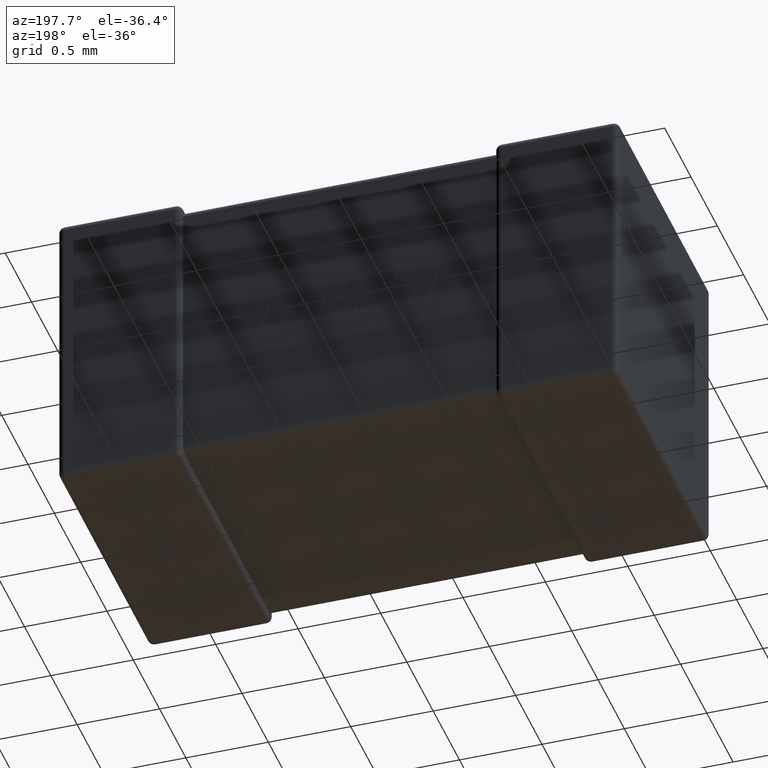
[diagram: clean part render]
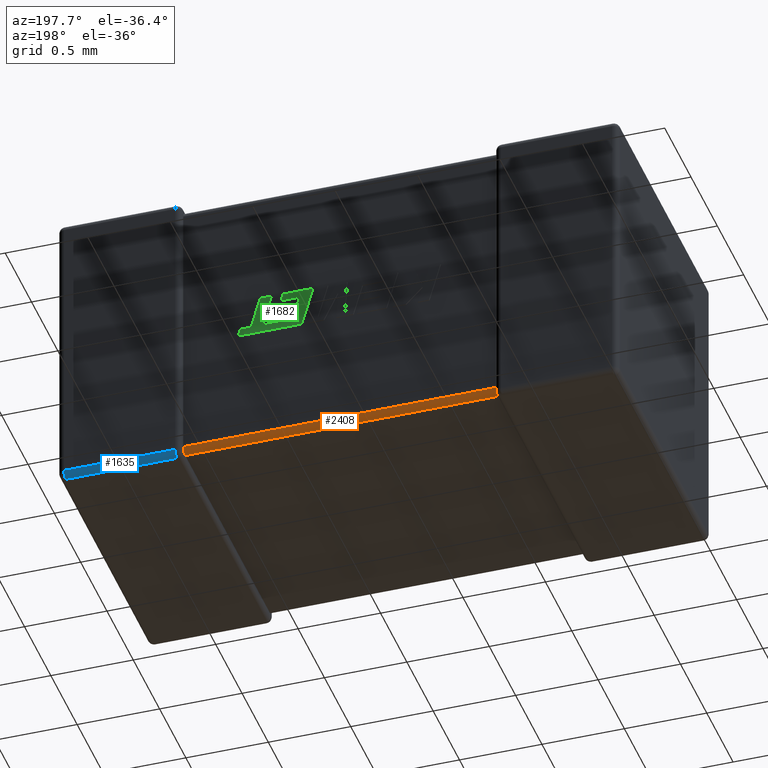
[diagram: same view with three faces highlighted in distinct colors, each labeled with its STEP entity id]
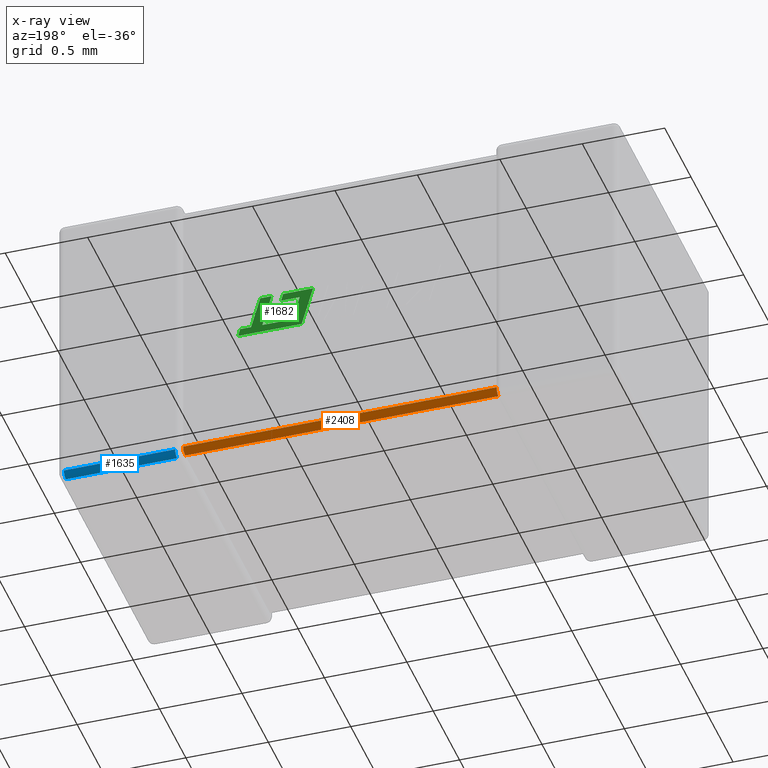
[diagram: x-ray of the same camera — body ghosted, the three highlighted faces saturated]
A machine part, auxiliary view with three faces highlighted in distinct colors.
The next image is the same camera in x-ray (body ghosted, the three faces saturated) — at least one of them is partly hidden behind the body in this view.
Their STEP definitions:

[orange] entity #2408 — the highlighted cylindrical surface (edge-blend (fillet) strip) has radius 0.0374 mm, axis along (1, 0, -0).
#42 = CARTESIAN_POINT ( 'NONE',  ( 2.650000000000000400, 1.712560000000000100, -1.725120000000000400 ) ) ;
#88 = CARTESIAN_POINT ( 'NONE',  ( 0.7491896543124088000, 1.698879399743857200, -1.754308756031391700 ) ) ;
#151 = CARTESIAN_POINT ( 'NONE',  ( 2.651077113600524000, 1.699472817018280000, -1.753595462526236400 ) ) ;
#229 = DIRECTION ( 'NONE',  ( 0.0000000000000000000, 0.0000000000000000000, -1.000000000000000000 ) ) ;
#388 = CARTESIAN_POINT ( 'NONE',  ( 0.7500000000000597300, 1.677073826076289000, -1.762560000000003500 ) ) ;
#481 = CARTESIAN_POINT ( 'NONE',  ( 2.649981875489027000, 1.683483006658177000, -1.761849501569502400 ) ) ;
#487 = VERTEX_POINT ( 'NONE', #3620 ) ;
#503 = VECTOR ( 'NONE', #1612, 1000.000000000000000 ) ;
#623 = VERTEX_POINT ( 'NONE', #4306 ) ;
#652 = CARTESIAN_POINT ( 'NONE',  ( 0.7486719482836991000, 1.702618713104943100, -1.750569442670480100 ) ) ;
#653 = CARTESIAN_POINT ( 'NONE',  ( 2.650002811559151600, 1.712101173622828900, -1.730963491890830500 ) ) ;
#684 = CARTESIAN_POINT ( 'NONE',  ( 2.650419588535662700, 1.706689860369978500, -1.745625844641273300 ) ) ;
#803 = CARTESIAN_POINT ( 'NONE',  ( 0.7499713104937157900, 1.688647876869319200, -1.760248868100307200 ) ) ;
#833 = EDGE_CURVE ( 'NONE', #3029, #487, #3016, .T. ) ;
#853 = CYLINDRICAL_SURFACE ( 'NONE', #3947, 0.03743999999999991100 ) ;
#1027 = CARTESIAN_POINT ( 'NONE',  ( 2.649999074182535900, 1.712406118760253700, -1.729033613440886100 ) ) ;
#1030 = LINE ( 'NONE', #4427, #503 ) ;
#1301 = CARTESIAN_POINT ( 'NONE',  ( 2.651641925300021200, 1.701594077887624600, -1.751594077887624400 ) ) ;
#1354 = ORIENTED_EDGE ( 'NONE', *, *, #2619, .F. ) ;
#1390 = DIRECTION ( 'NONE',  ( 1.000000000000000000, 0.0000000000000000000, -1.141265444721583300E-016 ) ) ;
#1395 = CARTESIAN_POINT ( 'NONE',  ( 0.7491234069079727400, 1.704505754207748400, -1.748319807103547500 ) ) ;
#1420 = CARTESIAN_POINT ( 'NONE',  ( 0.7489228863994765700, 1.703595462526236400, -1.749472817018280100 ) ) ;
#1511 = CARTESIAN_POINT ( 'NONE',  ( 0.7499897001034084900, 1.684830263302209200, -1.761490174966687400 ) ) ;
#1541 = CARTESIAN_POINT ( 'NONE',  ( 0.7499999999999997800, 1.675120000000000200, -1.725120000000000200 ) ) ;
#1545 = CARTESIAN_POINT ( 'NONE',  ( 0.7500009258174643600, 1.679033613440886300, -1.762406118760253500 ) ) ;
#1612 = DIRECTION ( 'NONE',  ( -1.000000000000000000, -0.0000000000000000000, 1.141265444721583300E-016 ) ) ;
#1614 = ORIENTED_EDGE ( 'NONE', *, *, #4602, .F. ) ;
#1911 = DIRECTION ( 'NONE',  ( 1.000000000000000000, 0.0000000000000000000, -1.141265444721583300E-016 ) ) ;
#2066 = CARTESIAN_POINT ( 'NONE',  ( 0.7483580746999795000, 1.701594077887624600, -1.751594077887624200 ) ) ;
#2081 = CARTESIAN_POINT ( 'NONE',  ( 2.650000000000000400, 1.712560000000000100, -1.725120000000000400 ) ) ;
#2097 = CARTESIAN_POINT ( 'NONE',  ( 2.650028689506284300, 1.710248868100307400, -1.738647876869318500 ) ) ;
#2114 = CARTESIAN_POINT ( 'NONE',  ( 0.7500181245109733800, 1.711849501569502100, -1.733483006658177000 ) ) ;
#2159 = CARTESIAN_POINT ( 'NONE',  ( 0.7499999999999998900, 1.712560000000000100, -1.729273104319553500 ) ) ;
#2251 = CARTESIAN_POINT ( 'NONE',  ( 0.7483580746999795000, 1.701594077887624600, -1.751594077887624200 ) ) ;
#2260 = CARTESIAN_POINT ( 'NONE',  ( 2.650000000000000400, 1.679273104319553700, -1.762560000000000300 ) ) ;
#2281 = CARTESIAN_POINT ( 'NONE',  ( 2.651641925300021200, 1.701594077887624600, -1.751594077887624400 ) ) ;
#2408 = ADVANCED_FACE ( 'NONE', ( #2900 ), #853, .T. ) ;
#2487 = VERTEX_POINT ( 'NONE', #3118 ) ;
#2608 = CARTESIAN_POINT ( 'NONE',  ( 0.7497761951928443300, 1.692130894679474900, -1.758472407142571000 ) ) ;
#2619 = EDGE_CURVE ( 'NONE', #487, #623, #4408, .T. ) ;
#2636 = ORIENTED_EDGE ( 'NONE', *, *, #4319, .F. ) ;
#2641 = CARTESIAN_POINT ( 'NONE',  ( 2.650000000000000400, 1.675120000000000200, -1.762560000000000300 ) ) ;
#2672 = CARTESIAN_POINT ( 'NONE',  ( 2.651641925300021200, 1.701594077887624600, -1.751594077887624400 ) ) ;
#2787 = B_SPLINE_CURVE_WITH_KNOTS ( 'NONE', 3,
 ( #2641, #2260, #481, #4113, #3005, #4478, #3368, #151, #3740, #2672 ),
 .UNSPECIFIED., .F., .F.,
 ( 4, 3, 3, 4 ),
 ( 0.0000000000000000000, 1.245931295866767200E-005, 2.494435532442513300E-005, 2.933501522755405000E-005 ),
 .UNSPECIFIED. ) ;
#2793 = CARTESIAN_POINT ( 'NONE',  ( 0.7499425627459470600, 1.710486934022921000, -1.737405502749922900 ) ) ;
#2811 = CARTESIAN_POINT ( 'NONE',  ( 2.650010299896592000, 1.711490174966687300, -1.734830263302209000 ) ) ;
#2900 = FACE_OUTER_BOUND ( 'NONE', #3646, .T. ) ;
#2916 = CARTESIAN_POINT ( 'NONE',  ( 0.7499999999999997800, 1.675120000000000200, -1.762560000000000100 ) ) ;
#3005 = CARTESIAN_POINT ( 'NONE',  ( 2.650133080042509400, 1.691332204858917000, -1.759122905421320900 ) ) ;
#3016 = B_SPLINE_CURVE_WITH_KNOTS ( 'NONE', 3,
 ( #2251, #88, #4400, #2608, #803, #1511, #3328, #1545, #388, #2916 ),
 .UNSPECIFIED., .F., .F.,
 ( 4, 3, 3, 4 ),
 ( 0.0000000000000000000, 1.178449470714578500E-005, 2.350683308088806900E-005, 2.930195342285769500E-005 ),
 .UNSPECIFIED. ) ;
#3029 = VERTEX_POINT ( 'NONE', #2066 ) ;
#3118 = CARTESIAN_POINT ( 'NONE',  ( 0.7499999999999998900, 1.712560000000000100, -1.725120000000000200 ) ) ;
#3124 = EDGE_CURVE ( 'NONE', #2487, #3029, #4299, .T. ) ;
#3203 = CARTESIAN_POINT ( 'NONE',  ( 2.650223804807156000, 1.708472407142571400, -1.742130894679474500 ) ) ;
#3215 = VERTEX_POINT ( 'NONE', #42 ) ;
#3328 = CARTESIAN_POINT ( 'NONE',  ( 0.7499971884408486200, 1.680963491890830900, -1.762101173622828900 ) ) ;
#3368 = CARTESIAN_POINT ( 'NONE',  ( 2.650876593092027700, 1.698319807103547700, -1.754505754207748500 ) ) ;
#3456 = VECTOR ( 'NONE', #1390, 1000.000000000000000 ) ;
#3545 = CARTESIAN_POINT ( 'NONE',  ( 0.7499999999999997800, 1.675120000000000200, -1.762560000000000100 ) ) ;
#3580 = CARTESIAN_POINT ( 'NONE',  ( 0.7483580746999795000, 1.701594077887624600, -1.751594077887624200 ) ) ;
#3581 = CARTESIAN_POINT ( 'NONE',  ( 2.649999999999940800, 1.712560000000003600, -1.727073826076289000 ) ) ;
#3620 = CARTESIAN_POINT ( 'NONE',  ( 0.7499999999999997800, 1.675120000000000200, -1.762560000000000100 ) ) ;
#3639 = B_SPLINE_CURVE_WITH_KNOTS ( 'NONE', 3,
 ( #1301, #4260, #684, #3203, #2097, #2811, #653, #1027, #3581, #2081 ),
 .UNSPECIFIED., .F., .F.,
 ( 4, 3, 3, 4 ),
 ( 0.0000000000000000000, 1.178449470714599500E-005, 2.350683308088840800E-005, 2.930195342285737700E-005 ),
 .UNSPECIFIED. ) ;
#3646 = EDGE_LOOP ( 'NONE', ( #3754, #2636, #1614, #4285, #1354, #4364 ) ) ;
#3740 = CARTESIAN_POINT ( 'NONE',  ( 2.651328051716300900, 1.700569442670480500, -1.752618713104942900 ) ) ;
#3754 = ORIENTED_EDGE ( 'NONE', *, *, #3124, .F. ) ;
#3837 = VERTEX_POINT ( 'NONE', #2281 ) ;
#3926 = EDGE_CURVE ( 'NONE', #623, #3837, #2787, .T. ) ;
#3947 = AXIS2_PLACEMENT_3D ( 'NONE', #1541, #1911, #229 ) ;
#4113 = CARTESIAN_POINT ( 'NONE',  ( 2.650057437254053300, 1.687405502749923100, -1.760486934022921200 ) ) ;
#4258 = CARTESIAN_POINT ( 'NONE',  ( 0.7498669199574908900, 1.709122905421320800, -1.741332204858916800 ) ) ;
#4260 = CARTESIAN_POINT ( 'NONE',  ( 2.650810345687591800, 1.704308756031392100, -1.748879399743857000 ) ) ;
#4285 = ORIENTED_EDGE ( 'NONE', *, *, #3926, .F. ) ;
#4299 = B_SPLINE_CURVE_WITH_KNOTS ( 'NONE', 3,
 ( #4321, #2159, #2114, #2793, #4258, #4651, #1395, #1420, #652, #3580 ),
 .UNSPECIFIED., .F., .F.,
 ( 4, 3, 3, 4 ),
 ( 0.0000000000000000000, 1.245931295866762300E-005, 2.494435532442500800E-005, 2.933501522755364300E-005 ),
 .UNSPECIFIED. ) ;
#4306 = CARTESIAN_POINT ( 'NONE',  ( 2.650000000000000400, 1.675120000000000200, -1.762560000000000300 ) ) ;
#4319 = EDGE_CURVE ( 'NONE', #3215, #2487, #1030, .T. ) ;
#4321 = CARTESIAN_POINT ( 'NONE',  ( 0.7499999999999998900, 1.712560000000000100, -1.725120000000000200 ) ) ;
#4364 = ORIENTED_EDGE ( 'NONE', *, *, #833, .F. ) ;
#4400 = CARTESIAN_POINT ( 'NONE',  ( 0.7495804114643377400, 1.695625844641273500, -1.756689860369978300 ) ) ;
#4408 = LINE ( 'NONE', #3545, #3456 ) ;
#4427 = CARTESIAN_POINT ( 'NONE',  ( 0.7499999999999998900, 1.712560000000000100, -1.725120000000000200 ) ) ;
#4478 = CARTESIAN_POINT ( 'NONE',  ( 2.650314308179935600, 1.695086621214438200, -1.757058327418119700 ) ) ;
#4602 = EDGE_CURVE ( 'NONE', #3837, #3215, #3639, .T. ) ;
#4651 = CARTESIAN_POINT ( 'NONE',  ( 0.7496856918200651700, 1.707058327418119500, -1.745086621214438000 ) ) ;

[blue] entity #1635 — the highlighted cylindrical surface (edge-blend (fillet) strip) has radius 0.0374 mm, axis along (-1, 0, 0).
#258 = DIRECTION ( 'NONE',  ( -1.000000000000000000, 0.0000000000000000000, 0.0000000000000000000 ) ) ;
#377 = DIRECTION ( 'NONE',  ( 1.000000000000000000, -0.0000000000000000000, -0.0000000000000000000 ) ) ;
#410 = VECTOR ( 'NONE', #2896, 1000.000000000000000 ) ;
#510 = CARTESIAN_POINT ( 'NONE',  ( 3.362560000000000200, 1.712560000000000100, -1.762560000000000100 ) ) ;
#520 = AXIS2_PLACEMENT_3D ( 'NONE', #510, #3031, #1958 ) ;
#568 = EDGE_CURVE ( 'NONE', #731, #4395, #1658, .T. ) ;
#579 = AXIS2_PLACEMENT_3D ( 'NONE', #2175, #377, #1898 ) ;
#678 = ORIENTED_EDGE ( 'NONE', *, *, #1845, .F. ) ;
#691 = EDGE_CURVE ( 'NONE', #731, #1534, #1325, .T. ) ;
#731 = VERTEX_POINT ( 'NONE', #4058 ) ;
#1018 = VERTEX_POINT ( 'NONE', #2407 ) ;
#1093 = CARTESIAN_POINT ( 'NONE',  ( 3.400000000000000400, 1.712560000000000100, -1.800000000000000000 ) ) ;
#1325 = CIRCLE ( 'NONE', #579, 0.03743999999999991100 ) ;
#1501 = CARTESIAN_POINT ( 'NONE',  ( 2.687440000000000500, 1.750000000000000000, -1.762560000000000100 ) ) ;
#1534 = VERTEX_POINT ( 'NONE', #1501 ) ;
#1635 = ADVANCED_FACE ( 'NONE', ( #2982 ), #3321, .T. ) ;
#1658 = LINE ( 'NONE', #1093, #410 ) ;
#1671 = CIRCLE ( 'NONE', #520, 0.03743999999999991100 ) ;
#1845 = EDGE_CURVE ( 'NONE', #4395, #1018, #1671, .T. ) ;
#1898 = DIRECTION ( 'NONE',  ( 0.0000000000000000000, 0.0000000000000000000, 1.000000000000000000 ) ) ;
#1958 = DIRECTION ( 'NONE',  ( 0.0000000000000000000, 0.0000000000000000000, -1.000000000000000000 ) ) ;
#1981 = DIRECTION ( 'NONE',  ( 0.0000000000000000000, 0.0000000000000000000, 1.000000000000000000 ) ) ;
#2054 = CARTESIAN_POINT ( 'NONE',  ( 3.400000000000000400, 1.712560000000000100, -1.762560000000000100 ) ) ;
#2175 = CARTESIAN_POINT ( 'NONE',  ( 2.687440000000000500, 1.712560000000000100, -1.762560000000000100 ) ) ;
#2310 = AXIS2_PLACEMENT_3D ( 'NONE', #2054, #258, #1981 ) ;
#2407 = CARTESIAN_POINT ( 'NONE',  ( 3.362560000000000200, 1.750000000000000000, -1.762560000000000100 ) ) ;
#2474 = EDGE_LOOP ( 'NONE', ( #3380, #4134, #678, #3561 ) ) ;
#2514 = DIRECTION ( 'NONE',  ( -1.000000000000000000, 0.0000000000000000000, 0.0000000000000000000 ) ) ;
#2896 = DIRECTION ( 'NONE',  ( 1.000000000000000000, -0.0000000000000000000, -0.0000000000000000000 ) ) ;
#2982 = FACE_OUTER_BOUND ( 'NONE', #2474, .T. ) ;
#3031 = DIRECTION ( 'NONE',  ( 1.000000000000000000, -0.0000000000000000000, 0.0000000000000000000 ) ) ;
#3321 = CYLINDRICAL_SURFACE ( 'NONE', #2310, 0.03743999999999991100 ) ;
#3380 = ORIENTED_EDGE ( 'NONE', *, *, #691, .T. ) ;
#3561 = ORIENTED_EDGE ( 'NONE', *, *, #568, .F. ) ;
#3908 = VECTOR ( 'NONE', #2514, 1000.000000000000000 ) ;
#3997 = CARTESIAN_POINT ( 'NONE',  ( 3.400000000000000400, 1.750000000000000000, -1.762560000000000100 ) ) ;
#4058 = CARTESIAN_POINT ( 'NONE',  ( 2.687440000000000500, 1.712560000000000100, -1.800000000000000000 ) ) ;
#4084 = CARTESIAN_POINT ( 'NONE',  ( 3.362560000000000200, 1.712560000000000100, -1.800000000000000000 ) ) ;
#4133 = EDGE_CURVE ( 'NONE', #1018, #1534, #4403, .T. ) ;
#4134 = ORIENTED_EDGE ( 'NONE', *, *, #4133, .F. ) ;
#4395 = VERTEX_POINT ( 'NONE', #4084 ) ;
#4403 = LINE ( 'NONE', #3997, #3908 ) ;

[green] entity #1682 — the highlighted planar face has unit normal (0, 1, 0).
#18 = LINE ( 'NONE', #4461, #1041 ) ;
#23 = LINE ( 'NONE', #452, #583 ) ;
#40 = LINE ( 'NONE', #2627, #2424 ) ;
#80 = LINE ( 'NONE', #101, #4654 ) ;
#85 = EDGE_CURVE ( 'NONE', #4165, #2595, #40, .T. ) ;
#95 = ORIENTED_EDGE ( 'NONE', *, *, #2400, .T. ) ;
#101 = CARTESIAN_POINT ( 'NONE',  ( 2.303225937787554100, 1.717560000000000200, -0.9629254097143191700 ) ) ;
#106 = EDGE_CURVE ( 'NONE', #2391, #3887, #1115, .T. ) ;
#129 = DIRECTION ( 'NONE',  ( -1.000000000000000000, 0.0000000000000000000, 0.0000000000000000000 ) ) ;
#184 = PLANE ( 'NONE',  #4577 ) ;
#342 = VERTEX_POINT ( 'NONE', #1418 ) ;
#343 = LINE ( 'NONE', #4372, #4243 ) ;
#375 = DIRECTION ( 'NONE',  ( -1.000000000000000000, 0.0000000000000000000, 0.0000000000000000000 ) ) ;
#405 = CARTESIAN_POINT ( 'NONE',  ( 1.959706246931078000, 1.717560000000000200, -0.8743560540085829600 ) ) ;
#452 = CARTESIAN_POINT ( 'NONE',  ( 2.113005515929134800, 1.717560000000000200, -0.7687800000000000200 ) ) ;
#512 = DIRECTION ( 'NONE',  ( 0.2729786930695100000, 0.0000000000000000000, -0.9620200793798756600 ) ) ;
#539 = CARTESIAN_POINT ( 'NONE',  ( 1.942636740367878400, 1.717560000000000200, -0.8145644959597147000 ) ) ;
#540 = ORIENTED_EDGE ( 'NONE', *, *, #4044, .T. ) ;
#563 = ORIENTED_EDGE ( 'NONE', *, *, #3596, .T. ) ;
#583 = VECTOR ( 'NONE', #1947, 1000.000000000000000 ) ;
#600 = VECTOR ( 'NONE', #791, 1000.000000000000100 ) ;
#746 = VECTOR ( 'NONE', #129, 1000.000000000000000 ) ;
#791 = DIRECTION ( 'NONE',  ( -0.2764273280489743500, 0.0000000000000000000, 0.9610348236706641700 ) ) ;
#801 = CARTESIAN_POINT ( 'NONE',  ( 1.930326972112929300, 1.717560000000000200, -1.009387468605939600 ) ) ;
#827 = CARTESIAN_POINT ( 'NONE',  ( 2.316578330123420800, 1.717560000000000200, -1.009387468605939600 ) ) ;
#839 = FACE_OUTER_BOUND ( 'NONE', #3991, .T. ) ;
#906 = DIRECTION ( 'NONE',  ( 0.0000000000000000000, 0.0000000000000000000, 1.000000000000000000 ) ) ;
#909 = DIRECTION ( 'NONE',  ( 0.2745159998572620500, 0.0000000000000000000, -0.9615825319869156800 ) ) ;
#916 = LINE ( 'NONE', #1072, #4534 ) ;
#949 = CARTESIAN_POINT ( 'NONE',  ( 2.075651887174539700, 1.717560000000000200, -0.9188280737652775300 ) ) ;
#960 = EDGE_CURVE ( 'NONE', #2470, #3535, #4135, .T. ) ;
#987 = DIRECTION ( 'NONE',  ( 0.2762437428917282600, 0.0000000000000000000, -0.9610876102172832800 ) ) ;
#989 = VERTEX_POINT ( 'NONE', #3817 ) ;
#1037 = CARTESIAN_POINT ( 'NONE',  ( 1.861119823717066300, 1.717560000000000200, -0.7687799999999998000 ) ) ;
#1041 = VECTOR ( 'NONE', #512, 1000.000000000000200 ) ;
#1072 = CARTESIAN_POINT ( 'NONE',  ( 1.985418782404688100, 1.717560000000000200, -0.9635810248831815400 ) ) ;
#1098 = EDGE_CURVE ( 'NONE', #3887, #1811, #2503, .T. ) ;
#1115 = LINE ( 'NONE', #1874, #600 ) ;
#1128 = CARTESIAN_POINT ( 'NONE',  ( 1.985418782404688100, 1.717560000000000200, -0.9635810248831815400 ) ) ;
#1132 = CARTESIAN_POINT ( 'NONE',  ( 2.113005515929134800, 1.717560000000000200, -0.7687800000000000200 ) ) ;
#1145 = VECTOR ( 'NONE', #4638, 1000.000000000000000 ) ;
#1262 = LINE ( 'NONE', #4544, #4584 ) ;
#1350 = ORIENTED_EDGE ( 'NONE', *, *, #1098, .T. ) ;
#1361 = VERTEX_POINT ( 'NONE', #4546 ) ;
#1378 = EDGE_CURVE ( 'NONE', #1952, #4165, #3795, .T. ) ;
#1418 = CARTESIAN_POINT ( 'NONE',  ( 2.055897437653676700, 1.717560000000000200, -0.8145644959597147000 ) ) ;
#1473 = ORIENTED_EDGE ( 'NONE', *, *, #4232, .T. ) ;
#1515 = DIRECTION ( 'NONE',  ( 0.9999999968487352000, 0.0000000000000000000, 7.938847109670267000E-005 ) ) ;
#1556 = DIRECTION ( 'NONE',  ( 0.9999891854650020400, 0.0000000000000000000, 0.004650693823683970900 ) ) ;
#1559 = CARTESIAN_POINT ( 'NONE',  ( 1.861119823717066300, 1.717560000000000200, -0.7687799999999998000 ) ) ;
#1608 = VECTOR ( 'NONE', #375, 1000.000000000000000 ) ;
#1642 = VECTOR ( 'NONE', #3971, 1000.000000000000000 ) ;
#1681 = ORIENTED_EDGE ( 'NONE', *, *, #3994, .T. ) ;
#1682 = ADVANCED_FACE ( 'NONE', ( #839 ), #184, .T. ) ;
#1738 = ORIENTED_EDGE ( 'NONE', *, *, #85, .T. ) ;
#1781 = EDGE_CURVE ( 'NONE', #2173, #1952, #23, .T. ) ;
#1811 = VERTEX_POINT ( 'NONE', #2341 ) ;
#1833 = ORIENTED_EDGE ( 'NONE', *, *, #1954, .T. ) ;
#1862 = VERTEX_POINT ( 'NONE', #4455 ) ;
#1874 = CARTESIAN_POINT ( 'NONE',  ( 1.930326972112929300, 1.717560000000000200, -1.009387468605939600 ) ) ;
#1880 = VECTOR ( 'NONE', #3603, 1000.000000000000200 ) ;
#1899 = EDGE_CURVE ( 'NONE', #1361, #3758, #4086, .T. ) ;
#1937 = VECTOR ( 'NONE', #2894, 1000.000000000000000 ) ;
#1947 = DIRECTION ( 'NONE',  ( 1.000000000000000000, 0.0000000000000000000, 0.0000000000000000000 ) ) ;
#1952 = VERTEX_POINT ( 'NONE', #3335 ) ;
#1954 = EDGE_CURVE ( 'NONE', #2595, #2565, #80, .T. ) ;
#2089 = CARTESIAN_POINT ( 'NONE',  ( 2.303225937787554100, 1.717560000000000200, -0.9629254097143191700 ) ) ;
#2099 = VERTEX_POINT ( 'NONE', #3585 ) ;
#2173 = VERTEX_POINT ( 'NONE', #1132 ) ;
#2180 = EDGE_CURVE ( 'NONE', #3535, #1361, #3531, .T. ) ;
#2276 = EDGE_CURVE ( 'NONE', #2099, #2470, #4137, .T. ) ;
#2341 = CARTESIAN_POINT ( 'NONE',  ( 2.042905825380900300, 1.717560000000000200, -0.7687799999999998000 ) ) ;
#2391 = VERTEX_POINT ( 'NONE', #801 ) ;
#2400 = EDGE_CURVE ( 'NONE', #2565, #2391, #2509, .T. ) ;
#2424 = VECTOR ( 'NONE', #1515, 1000.000000000000100 ) ;
#2454 = VECTOR ( 'NONE', #909, 1000.000000000000100 ) ;
#2470 = VERTEX_POINT ( 'NONE', #3812 ) ;
#2491 = ORIENTED_EDGE ( 'NONE', *, *, #3228, .T. ) ;
#2492 = LINE ( 'NONE', #3607, #1642 ) ;
#2503 = LINE ( 'NONE', #1037, #1145 ) ;
#2509 = LINE ( 'NONE', #827, #746 ) ;
#2539 = CARTESIAN_POINT ( 'NONE',  ( 1.972396443264240000, 1.717560000000000200, -0.9188280737652775300 ) ) ;
#2547 = ORIENTED_EDGE ( 'NONE', *, *, #1899, .T. ) ;
#2565 = VERTEX_POINT ( 'NONE', #2803 ) ;
#2595 = VERTEX_POINT ( 'NONE', #2089 ) ;
#2627 = CARTESIAN_POINT ( 'NONE',  ( 2.237349833325962900, 1.717560000000000200, -0.9629306395175506500 ) ) ;
#2695 = CARTESIAN_POINT ( 'NONE',  ( -0.0002255481140237512700, 1.717559999999999800, 0.04035665622677719900 ) ) ;
#2727 = CARTESIAN_POINT ( 'NONE',  ( 2.181545452148865700, 1.717560000000000200, -0.7687800000000000200 ) ) ;
#2803 = CARTESIAN_POINT ( 'NONE',  ( 2.316578330123420800, 1.717560000000000200, -1.009387468605939600 ) ) ;
#2894 = DIRECTION ( 'NONE',  ( 1.000000000000000000, 0.0000000000000000000, 0.0000000000000000000 ) ) ;
#2984 = ORIENTED_EDGE ( 'NONE', *, *, #2276, .T. ) ;
#3044 = ORIENTED_EDGE ( 'NONE', *, *, #2180, .T. ) ;
#3059 = DIRECTION ( 'NONE',  ( 0.0000000000000000000, 1.000000000000000000, 0.0000000000000000000 ) ) ;
#3076 = ORIENTED_EDGE ( 'NONE', *, *, #1781, .T. ) ;
#3087 = CARTESIAN_POINT ( 'NONE',  ( 1.942636740367878400, 1.717560000000000200, -0.8145644959597147000 ) ) ;
#3155 = ORIENTED_EDGE ( 'NONE', *, *, #960, .T. ) ;
#3207 = CARTESIAN_POINT ( 'NONE',  ( 2.237349833325962900, 1.717560000000000200, -0.9629306395175506500 ) ) ;
#3228 = EDGE_CURVE ( 'NONE', #342, #4509, #2492, .T. ) ;
#3231 = CARTESIAN_POINT ( 'NONE',  ( 2.062947058999645000, 1.717560000000000200, -0.8743560540085829600 ) ) ;
#3335 = CARTESIAN_POINT ( 'NONE',  ( 2.181545452148865700, 1.717560000000000200, -0.7687800000000000200 ) ) ;
#3531 = LINE ( 'NONE', #3642, #1608 ) ;
#3535 = VERTEX_POINT ( 'NONE', #949 ) ;
#3557 = ORIENTED_EDGE ( 'NONE', *, *, #106, .T. ) ;
#3585 = CARTESIAN_POINT ( 'NONE',  ( 1.959706246931078000, 1.717560000000000200, -0.8743560540085829600 ) ) ;
#3596 = EDGE_CURVE ( 'NONE', #3758, #989, #916, .T. ) ;
#3603 = DIRECTION ( 'NONE',  ( 0.2746918797667152700, 0.0000000000000000000, -0.9615323037684320200 ) ) ;
#3607 = CARTESIAN_POINT ( 'NONE',  ( 2.055897437653676700, 1.717560000000000200, -0.8145644959597147000 ) ) ;
#3642 = CARTESIAN_POINT ( 'NONE',  ( 2.075651887174539700, 1.717560000000000200, -0.9188280737652775300 ) ) ;
#3673 = ORIENTED_EDGE ( 'NONE', *, *, #1378, .T. ) ;
#3733 = VECTOR ( 'NONE', #987, 1000.000000000000000 ) ;
#3758 = VERTEX_POINT ( 'NONE', #1128 ) ;
#3795 = LINE ( 'NONE', #2727, #3733 ) ;
#3812 = CARTESIAN_POINT ( 'NONE',  ( 2.062947058999645000, 1.717560000000000200, -0.8743560540085829600 ) ) ;
#3817 = CARTESIAN_POINT ( 'NONE',  ( 2.095678488951810500, 1.717560000000000200, -0.9632708298384069500 ) ) ;
#3839 = EDGE_CURVE ( 'NONE', #1811, #342, #18, .T. ) ;
#3872 = VECTOR ( 'NONE', #4355, 1000.000000000000100 ) ;
#3887 = VERTEX_POINT ( 'NONE', #1559 ) ;
#3971 = DIRECTION ( 'NONE',  ( -1.000000000000000000, 0.0000000000000000000, 0.0000000000000000000 ) ) ;
#3991 = EDGE_LOOP ( 'NONE', ( #563, #1473, #1681, #3076, #3673, #1738, #1833, #95, #3557, #1350, #4242, #2491, #540, #2984, #3155, #3044, #2547 ) ) ;
#3994 = EDGE_CURVE ( 'NONE', #1862, #2173, #1262, .T. ) ;
#4044 = EDGE_CURVE ( 'NONE', #4509, #2099, #4246, .T. ) ;
#4050 = DIRECTION ( 'NONE',  ( 0.2762033010289140500, 0.0000000000000000000, -0.9610992334305189500 ) ) ;
#4086 = LINE ( 'NONE', #2539, #3872 ) ;
#4135 = LINE ( 'NONE', #3231, #1880 ) ;
#4137 = LINE ( 'NONE', #405, #1937 ) ;
#4164 = DIRECTION ( 'NONE',  ( -0.2763173343569956300, 0.0000000000000000000, 0.9610664548998910700 ) ) ;
#4165 = VERTEX_POINT ( 'NONE', #3207 ) ;
#4232 = EDGE_CURVE ( 'NONE', #989, #1862, #343, .T. ) ;
#4242 = ORIENTED_EDGE ( 'NONE', *, *, #3839, .T. ) ;
#4243 = VECTOR ( 'NONE', #1556, 1000.000000000000200 ) ;
#4246 = LINE ( 'NONE', #539, #2454 ) ;
#4281 = DIRECTION ( 'NONE',  ( 0.9999960426590095400, 0.0000000000000000000, 0.002813301676023789700 ) ) ;
#4355 = DIRECTION ( 'NONE',  ( 0.2793947940814949200, 0.0000000000000000000, -0.9601763114346025800 ) ) ;
#4372 = CARTESIAN_POINT ( 'NONE',  ( 2.095678488951810500, 1.717560000000000200, -0.9632708298384069500 ) ) ;
#4455 = CARTESIAN_POINT ( 'NONE',  ( 2.168825992132259500, 1.717560000000000200, -0.9629306395181476100 ) ) ;
#4461 = CARTESIAN_POINT ( 'NONE',  ( 2.042905825380900300, 1.717560000000000200, -0.7687799999999998000 ) ) ;
#4509 = VERTEX_POINT ( 'NONE', #3087 ) ;
#4534 = VECTOR ( 'NONE', #4281, 1000.000000000000100 ) ;
#4544 = CARTESIAN_POINT ( 'NONE',  ( 2.168825992132259500, 1.717560000000000200, -0.9629306395181476100 ) ) ;
#4546 = CARTESIAN_POINT ( 'NONE',  ( 1.972396443264240000, 1.717560000000000200, -0.9188280737652775300 ) ) ;
#4577 = AXIS2_PLACEMENT_3D ( 'NONE', #2695, #3059, #906 ) ;
#4584 = VECTOR ( 'NONE', #4164, 1000.000000000000100 ) ;
#4638 = DIRECTION ( 'NONE',  ( 1.000000000000000000, 0.0000000000000000000, 0.0000000000000000000 ) ) ;
#4654 = VECTOR ( 'NONE', #4050, 1000.000000000000100 ) ;